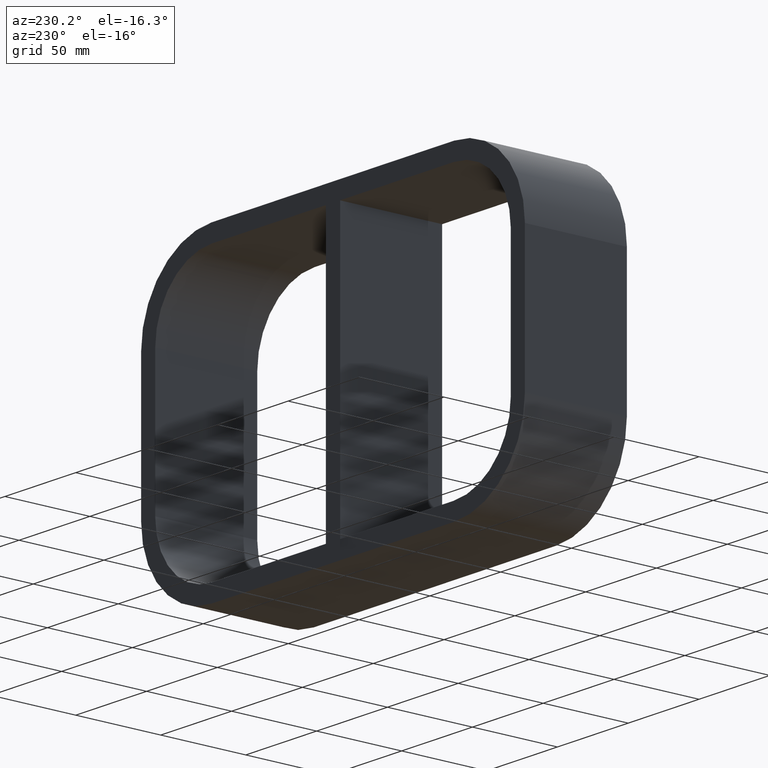
[diagram: clean part render]
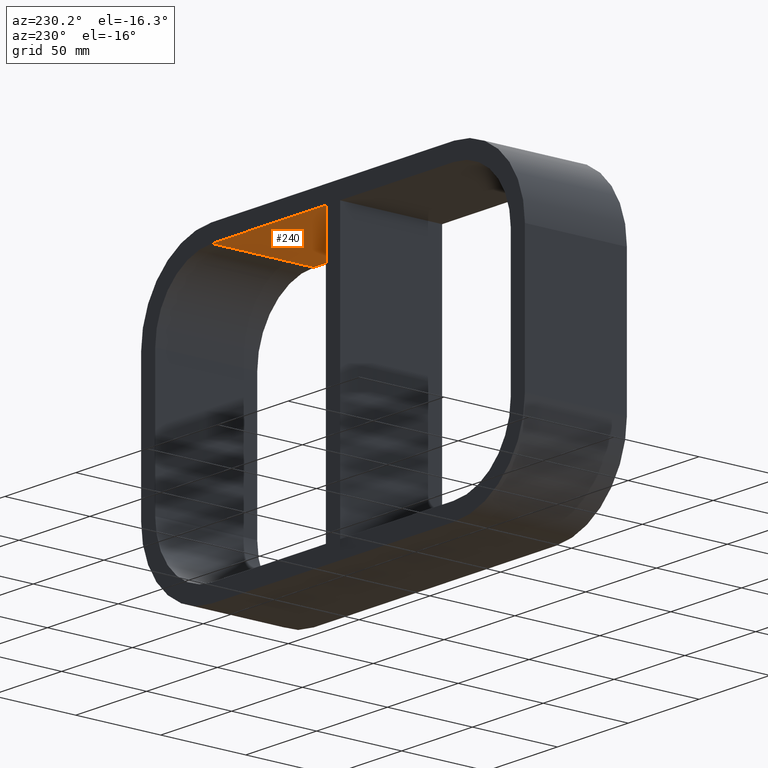
[diagram: same view with one face highlighted and labeled with its STEP entity id]
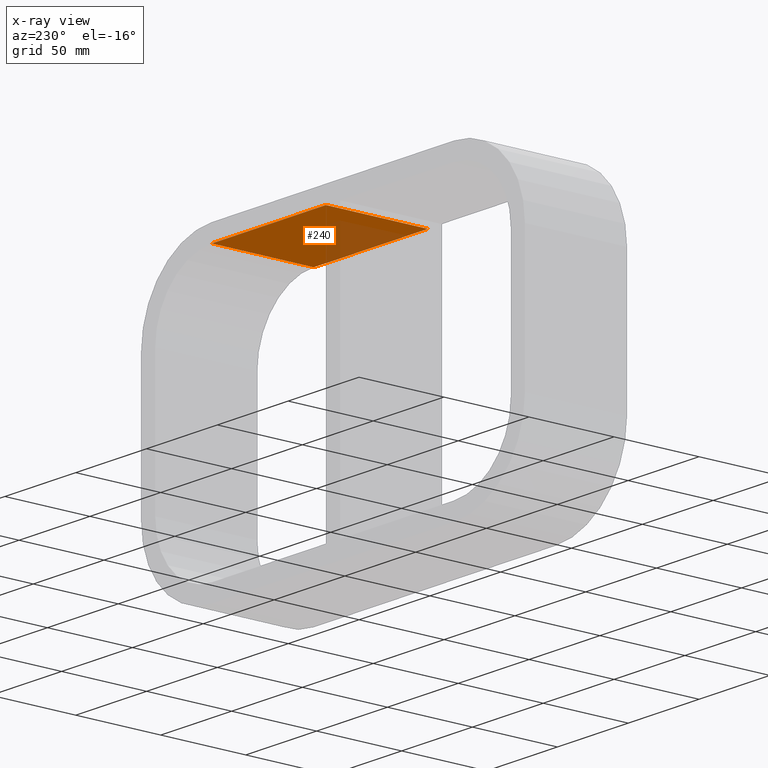
[diagram: x-ray of the same camera — body ghosted, the highlighted face saturated]
A machine part, auxiliary view. The second image highlights one B-rep face of the part: STEP entity #240.
The next image is the same camera in x-ray: the body ghosted, the highlighted face saturated — about 27% of this face is hidden behind the body in this view.
In plain terms, the highlighted planar face has unit normal (0, 0, 1).
Its self-contained STEP definition (entity closure, byte-faithful):
#113=CARTESIAN_POINT('',(5.0,-3.0,79.750000000000014));
#114=VERTEX_POINT('',#113);
#131=CARTESIAN_POINT('',(5.0,57.0,79.750000000000014));
#132=VERTEX_POINT('',#131);
#139=CARTESIAN_POINT('',(5.0,-3.0,79.750000000000014));
#140=DIRECTION('',(0.0,1.0,0.0));
#141=VECTOR('',#140,60.000000000000007);
#142=LINE('',#139,#141);
#143=EDGE_CURVE('',#114,#132,#142,.T.);
#210=CARTESIAN_POINT('',(-125.5,0.0,79.750000000000014));
#211=DIRECTION('',(0.0,0.0,1.0));
#212=DIRECTION('',(1.0,0.0,0.0));
#213=AXIS2_PLACEMENT_3D('',#210,#211,#212);
#214=PLANE('',#213);
#215=ORIENTED_EDGE('',*,*,#143,.T.);
#216=CARTESIAN_POINT('',(85.5,57.0,79.750000000000014));
#217=VERTEX_POINT('',#216);
#218=CARTESIAN_POINT('',(85.5,57.0,79.750000000000014));
#219=DIRECTION('',(-1.0,0.0,0.0));
#220=VECTOR('',#219,80.5);
#221=LINE('',#218,#220);
#222=EDGE_CURVE('',#217,#132,#221,.T.);
#223=ORIENTED_EDGE('',*,*,#222,.F.);
#224=CARTESIAN_POINT('',(85.5,-3.0,79.750000000000014));
#225=VERTEX_POINT('',#224);
#226=CARTESIAN_POINT('',(85.5,-3.0,79.750000000000014));
#227=DIRECTION('',(0.0,1.0,0.0));
#228=VECTOR('',#227,60.0);
#229=LINE('',#226,#228);
#230=EDGE_CURVE('',#225,#217,#229,.T.);
#231=ORIENTED_EDGE('',*,*,#230,.F.);
#232=CARTESIAN_POINT('',(5.0,-3.0,79.750000000000014));
#233=DIRECTION('',(1.0,0.0,0.0));
#234=VECTOR('',#233,80.5);
#235=LINE('',#232,#234);
#236=EDGE_CURVE('',#114,#225,#235,.T.);
#237=ORIENTED_EDGE('',*,*,#236,.F.);
#238=EDGE_LOOP('',(#215,#223,#231,#237));
#239=FACE_OUTER_BOUND('',#238,.T.);
#240=ADVANCED_FACE('',(#239),#214,.F.);